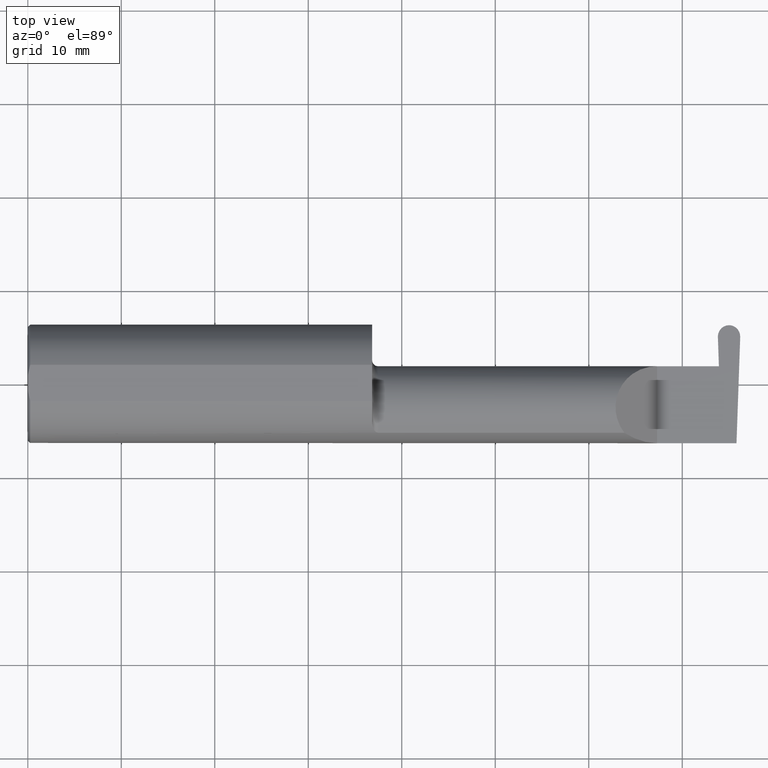
[diagram: clean part render]
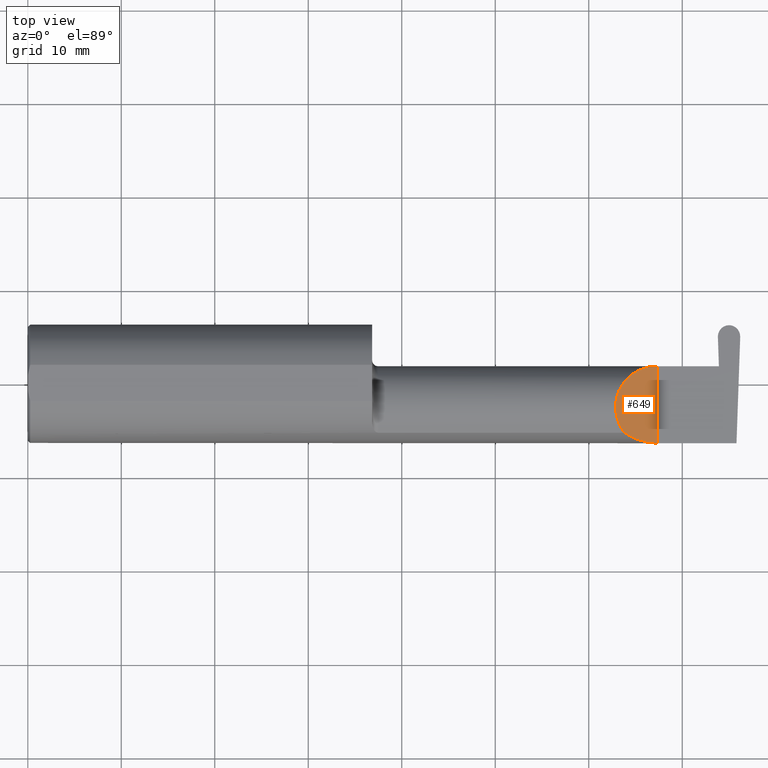
[diagram: same view with one face highlighted and labeled with its STEP entity id]
A machine part, top view. The second image highlights one B-rep face of the part: STEP entity #649.
In plain terms, the highlighted planar face has unit normal (-0.7071, 0, -0.7071).
Its self-contained STEP definition (entity closure, byte-faithful):
#18 = CARTESIAN_POINT ( 'NONE',  ( 2.511704467739031887, -0.2080850024789287211, 0.1382955322609671911 ) ) ;
#23 = CARTESIAN_POINT ( 'NONE',  ( 2.650000000000000355, -0.2500000000000000555, 4.286263797015729199E-17 ) ) ;
#30 = FACE_OUTER_BOUND ( 'NONE', #677, .T. ) ;
#33 = DIRECTION ( 'NONE',  ( -0.7071067811865439090, 0.000000000000000000, -0.7071067811865511255 ) ) ;
#35 = DIRECTION ( 'NONE',  ( -0.7071067811865511255, 0.000000000000000000, 0.7071067811865439090 ) ) ;
#50 = CARTESIAN_POINT ( 'NONE',  ( 2.511704467739031887, -0.2080850024789287211, 0.1382955322609671911 ) ) ;
#74 = CARTESIAN_POINT ( 'NONE',  ( 2.650000000000000355, 0.07414999999999995206, 1.898202538678394994E-16 ) ) ;
#94 = ORIENTED_EDGE ( 'NONE', *, *, #267, .F. ) ;
#115 = VERTEX_POINT ( 'NONE', #324 ) ;
#116 = CARTESIAN_POINT ( 'NONE',  ( 2.650000000000000355, -0.2498499999999999610, 4.286263797015729199E-17 ) ) ;
#140 = PLANE ( 'NONE',  #193 ) ;
#193 = AXIS2_PLACEMENT_3D ( 'NONE', #690, #33, #35 ) ;
#199 = CARTESIAN_POINT ( 'NONE',  ( 2.650000000000000355, -0.2498499999999999610, 4.286263797015729199E-17 ) ) ;
#243 = LINE ( 'NONE', #23, #379 ) ;
#267 = EDGE_CURVE ( 'NONE', #455, #115, #565, .T. ) ;
#279 = CARTESIAN_POINT ( 'NONE',  ( 2.552984868485331571, -0.2355204011147991605, 0.09701513151466779894 ) ) ;
#324 = CARTESIAN_POINT ( 'NONE',  ( 2.650000000000000355, 0.07414999999999995206, 1.898202538678394994E-16 ) ) ;
#347 = EDGE_CURVE ( 'NONE', #687, #455, #533, .T. ) ;
#354 = CARTESIAN_POINT ( 'NONE',  ( 2.511704467739031887, -0.2080850024789287211, 0.1382955322609671911 ) ) ;
#379 = VECTOR ( 'NONE', #514, 39.37007874015748143 ) ;
#455 = VERTEX_POINT ( 'NONE', #18 ) ;
#481 = EDGE_CURVE ( 'NONE', #687, #115, #243, .T. ) ;
#512 = CARTESIAN_POINT ( 'NONE',  ( 2.482823929317965028, 0.07414999999999996594, 0.1671760706820336062 ) ) ;
#514 = DIRECTION ( 'NONE',  ( -0.000000000000000000, 1.000000000000000000, -0.000000000000000000 ) ) ;
#525 = ORIENTED_EDGE ( 'NONE', *, *, #481, .T. ) ;
#533 =( BOUNDED_CURVE ( )  B_SPLINE_CURVE ( 3, ( #116, #662, #279, #50 ),
 .UNSPECIFIED., .F., .F. ) 
 B_SPLINE_CURVE_WITH_KNOTS ( ( 4, 4 ),
 ( 4.712388980384689674, 5.298966915116348986 ),
 .UNSPECIFIED. ) 
 CURVE ( )  GEOMETRIC_REPRESENTATION_ITEM ( )  RATIONAL_B_SPLINE_CURVE ( ( 1.000000000000000000, 0.9715321379117536349, 0.9715321379117536349, 1.000000000000000000 ) ) 
 REPRESENTATION_ITEM ( '' )  );
#565 =( BOUNDED_CURVE ( )  B_SPLINE_CURVE ( 3, ( #354, #676, #512, #74 ),
 .UNSPECIFIED., .F., .T. ) 
 B_SPLINE_CURVE_WITH_KNOTS ( ( 4, 4 ),
 ( 5.623622464215683792, 7.853981633974482790 ),
 .UNSPECIFIED. ) 
 CURVE ( )  GEOMETRIC_REPRESENTATION_ITEM ( )  RATIONAL_B_SPLINE_CURVE ( ( 1.000000000000000000, 0.6266774836124003878, 0.6266774836124003878, 1.000000000000000000 ) ) 
 REPRESENTATION_ITEM ( '' )  );
#573 = ORIENTED_EDGE ( 'NONE', *, *, #347, .F. ) ;
#649 = ADVANCED_FACE ( 'NONE', ( #30 ), #140, .F. ) ;
#662 = CARTESIAN_POINT ( 'NONE',  ( 2.600434159100402987, -0.2498499999999999610, 0.04956584089959713973 ) ) ;
#676 = CARTESIAN_POINT ( 'NONE',  ( 2.409263745716142768, -0.07597241004310649470, 0.2407362542838552555 ) ) ;
#677 = EDGE_LOOP ( 'NONE', ( #94, #573, #525 ) ) ;
#687 = VERTEX_POINT ( 'NONE', #199 ) ;
#690 = CARTESIAN_POINT ( 'NONE',  ( 2.650000000000000355, -0.2500000000000000555, 4.286263797015729199E-17 ) ) ;